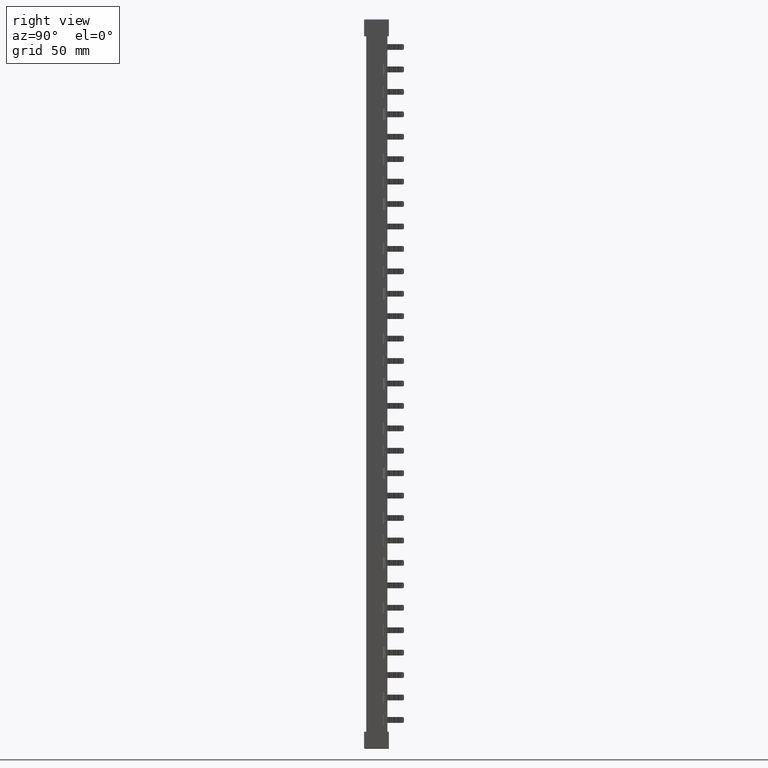
[diagram: clean part render]
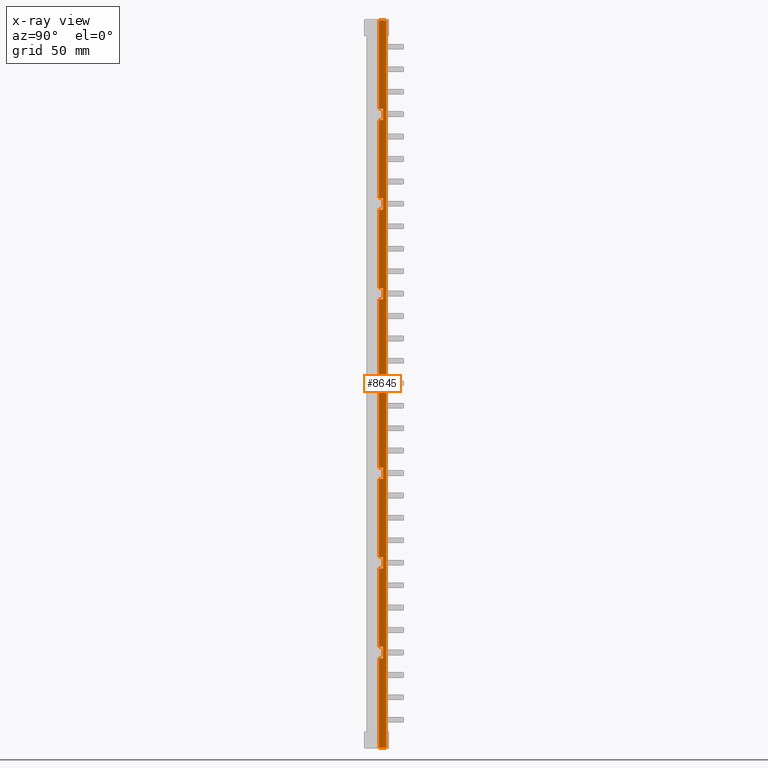
[diagram: x-ray — body ghosted, one internal face saturated and labeled with its STEP entity id]
A machine part, right view, then the same camera in x-ray: the body is ghosted and one INTERNAL B-rep face — a face not visible from any outside direction — is saturated and labeled: STEP entity #8645.
In plain terms, the highlighted planar face has unit normal (1, -0, 0).
Its self-contained STEP definition (entity closure, byte-faithful):
#1299 = PLANE ( 'NONE',  #4709 ) ;
#1300 = DIRECTION ( 'NONE',  ( 1.000000000000000000, -0.0000000000000000000, 0.0000000000000000000 ) ) ;
#1325 = FACE_OUTER_BOUND ( 'NONE', #6038, .T. ) ;
#1337 = DIRECTION ( 'NONE',  ( 0.0000000000000000000, 0.0000000000000000000, -1.000000000000000000 ) ) ;
#1340 = CARTESIAN_POINT ( 'NONE',  ( 1.000000000000000900, -14.22575591090892800, 304.0000000000000000 ) ) ;
#3133 = VERTEX_POINT ( 'NONE', #17382 ) ;
#3139 = VERTEX_POINT ( 'NONE', #17392 ) ;
#3141 = VERTEX_POINT ( 'NONE', #17350 ) ;
#3143 = VERTEX_POINT ( 'NONE', #17357 ) ;
#3153 = VERTEX_POINT ( 'NONE', #17341 ) ;
#3161 = VERTEX_POINT ( 'NONE', #17372 ) ;
#3173 = VERTEX_POINT ( 'NONE', #17375 ) ;
#3192 = VERTEX_POINT ( 'NONE', #17374 ) ;
#3206 = VERTEX_POINT ( 'NONE', #17362 ) ;
#3207 = VERTEX_POINT ( 'NONE', #17348 ) ;
#3208 = VERTEX_POINT ( 'NONE', #17360 ) ;
#3215 = VERTEX_POINT ( 'NONE', #17387 ) ;
#3216 = VERTEX_POINT ( 'NONE', #17365 ) ;
#3218 = VERTEX_POINT ( 'NONE', #17389 ) ;
#3219 = VERTEX_POINT ( 'NONE', #17349 ) ;
#3222 = VERTEX_POINT ( 'NONE', #17383 ) ;
#3223 = VERTEX_POINT ( 'NONE', #17351 ) ;
#3236 = VERTEX_POINT ( 'NONE', #17355 ) ;
#3260 = VERTEX_POINT ( 'NONE', #17379 ) ;
#3261 = VERTEX_POINT ( 'NONE', #17380 ) ;
#3277 = VERTEX_POINT ( 'NONE', #17396 ) ;
#3284 = VERTEX_POINT ( 'NONE', #17441 ) ;
#3287 = VERTEX_POINT ( 'NONE', #17406 ) ;
#3355 = ORIENTED_EDGE ( 'NONE', *, *, #9832, .T. ) ;
#3356 = ORIENTED_EDGE ( 'NONE', *, *, #9846, .T. ) ;
#3364 = ORIENTED_EDGE ( 'NONE', *, *, #9873, .T. ) ;
#3393 = ORIENTED_EDGE ( 'NONE', *, *, #9840, .T. ) ;
#3402 = ORIENTED_EDGE ( 'NONE', *, *, #9881, .F. ) ;
#3403 = ORIENTED_EDGE ( 'NONE', *, *, #9867, .T. ) ;
#3404 = ORIENTED_EDGE ( 'NONE', *, *, #9883, .T. ) ;
#3416 = ORIENTED_EDGE ( 'NONE', *, *, #9856, .T. ) ;
#3418 = ORIENTED_EDGE ( 'NONE', *, *, #9852, .T. ) ;
#3421 = ORIENTED_EDGE ( 'NONE', *, *, #9869, .T. ) ;
#3422 = ORIENTED_EDGE ( 'NONE', *, *, #9854, .T. ) ;
#3432 = ORIENTED_EDGE ( 'NONE', *, *, #9874, .T. ) ;
#3436 = ORIENTED_EDGE ( 'NONE', *, *, #9882, .T. ) ;
#3437 = ORIENTED_EDGE ( 'NONE', *, *, #9842, .T. ) ;
#3438 = ORIENTED_EDGE ( 'NONE', *, *, #9859, .T. ) ;
#3445 = ORIENTED_EDGE ( 'NONE', *, *, #9848, .T. ) ;
#3450 = ORIENTED_EDGE ( 'NONE', *, *, #9828, .T. ) ;
#3451 = ORIENTED_EDGE ( 'NONE', *, *, #9847, .F. ) ;
#3452 = ORIENTED_EDGE ( 'NONE', *, *, #9858, .T. ) ;
#3453 = ORIENTED_EDGE ( 'NONE', *, *, #9871, .T. ) ;
#3454 = ORIENTED_EDGE ( 'NONE', *, *, #9853, .T. ) ;
#3455 = ORIENTED_EDGE ( 'NONE', *, *, #9831, .T. ) ;
#3456 = ORIENTED_EDGE ( 'NONE', *, *, #9918, .T. ) ;
#3460 = ORIENTED_EDGE ( 'NONE', *, *, #9879, .T. ) ;
#3461 = ORIENTED_EDGE ( 'NONE', *, *, #9836, .T. ) ;
#3466 = ORIENTED_EDGE ( 'NONE', *, *, #9790, .T. ) ;
#3468 = ORIENTED_EDGE ( 'NONE', *, *, #9857, .T. ) ;
#3471 = ORIENTED_EDGE ( 'NONE', *, *, #9884, .T. ) ;
#3474 = ORIENTED_EDGE ( 'NONE', *, *, #9877, .T. ) ;
#3478 = ORIENTED_EDGE ( 'NONE', *, *, #9843, .T. ) ;
#3479 = ORIENTED_EDGE ( 'NONE', *, *, #9833, .T. ) ;
#3480 = ORIENTED_EDGE ( 'NONE', *, *, #9841, .T. ) ;
#4709 = AXIS2_PLACEMENT_3D ( 'NONE', #1340, #1300, #1337 ) ;
#6038 = EDGE_LOOP ( 'NONE', ( #3404, #3460, #3480, #3393, #3474, #3364, #3403, #3453, #3454, #3452, #3432, #3421, #3456, #3479, #3436, #3416, #3468, #3461, #3478, #3418, #3356, #3445, #3437, #3450, #3422, #3355, #3455, #3438, #3466, #3402, #3471, #3451 ) ) ;
#8645 = ADVANCED_FACE ( 'NONE', ( #1325 ), #1299, .T. ) ;
#9790 = EDGE_CURVE ( 'NONE', #12800, #12786, #52146, .T. ) ;
#9828 = EDGE_CURVE ( 'NONE', #3218, #12813, #52341, .T. ) ;
#9831 = EDGE_CURVE ( 'NONE', #3223, #3284, #52354, .T. ) ;
#9832 = EDGE_CURVE ( 'NONE', #12781, #3223, #52319, .T. ) ;
#9833 = EDGE_CURVE ( 'NONE', #3153, #3139, #52356, .T. ) ;
#9836 = EDGE_CURVE ( 'NONE', #12986, #3216, #52385, .T. ) ;
#9840 = EDGE_CURVE ( 'NONE', #3206, #3260, #52412, .T. ) ;
#9841 = EDGE_CURVE ( 'NONE', #3133, #3206, #52413, .T. ) ;
#9842 = EDGE_CURVE ( 'NONE', #3222, #3218, #52425, .T. ) ;
#9843 = EDGE_CURVE ( 'NONE', #3216, #3141, #52421, .T. ) ;
#9846 = EDGE_CURVE ( 'NONE', #12784, #12864, #52390, .T. ) ;
#9847 = EDGE_CURVE ( 'NONE', #12746, #3173, #52419, .T. ) ;
#9848 = EDGE_CURVE ( 'NONE', #12864, #3222, #52416, .T. ) ;
#9852 = EDGE_CURVE ( 'NONE', #3141, #12784, #52396, .T. ) ;
#9853 = EDGE_CURVE ( 'NONE', #3261, #3277, #52427, .T. ) ;
#9854 = EDGE_CURVE ( 'NONE', #12813, #12781, #52443, .T. ) ;
#9856 = EDGE_CURVE ( 'NONE', #3219, #12262, #52429, .T. ) ;
#9857 = EDGE_CURVE ( 'NONE', #12262, #12986, #52456, .T. ) ;
#9858 = EDGE_CURVE ( 'NONE', #3277, #3207, #52467, .T. ) ;
#9859 = EDGE_CURVE ( 'NONE', #3284, #12800, #52481, .T. ) ;
#9867 = EDGE_CURVE ( 'NONE', #3215, #3161, #52442, .T. ) ;
#9869 = EDGE_CURVE ( 'NONE', #3192, #3143, #52479, .T. ) ;
#9871 = EDGE_CURVE ( 'NONE', #3161, #3261, #52466, .T. ) ;
#9873 = EDGE_CURVE ( 'NONE', #3287, #3215, #52488, .T. ) ;
#9874 = EDGE_CURVE ( 'NONE', #3207, #3192, #50385, .T. ) ;
#9877 = EDGE_CURVE ( 'NONE', #3260, #3287, #50458, .T. ) ;
#9879 = EDGE_CURVE ( 'NONE', #3236, #3133, #52468, .T. ) ;
#9881 = EDGE_CURVE ( 'NONE', #3208, #12786, #50410, .T. ) ;
#9882 = EDGE_CURVE ( 'NONE', #3139, #3219, #50476, .T. ) ;
#9883 = EDGE_CURVE ( 'NONE', #12746, #3236, #50441, .T. ) ;
#9884 = EDGE_CURVE ( 'NONE', #3208, #3173, #50437, .T. ) ;
#9918 = EDGE_CURVE ( 'NONE', #3143, #3153, #56775, .T. ) ;
#12262 = VERTEX_POINT ( 'NONE', #42134 ) ;
#12746 = VERTEX_POINT ( 'NONE', #39005 ) ;
#12781 = VERTEX_POINT ( 'NONE', #39049 ) ;
#12784 = VERTEX_POINT ( 'NONE', #39091 ) ;
#12786 = VERTEX_POINT ( 'NONE', #39092 ) ;
#12800 = VERTEX_POINT ( 'NONE', #39074 ) ;
#12813 = VERTEX_POINT ( 'NONE', #39076 ) ;
#12864 = VERTEX_POINT ( 'NONE', #39138 ) ;
#12986 = VERTEX_POINT ( 'NONE', #39278 ) ;
#17341 = CARTESIAN_POINT ( 'NONE',  ( 1.000000000000000900, 10.00000000000003600, 24.90499999999656900 ) ) ;
#17348 = CARTESIAN_POINT ( 'NONE',  ( 1.000000000000000900, 13.19999999999797400, 95.00499999999655600 ) ) ;
#17349 = CARTESIAN_POINT ( 'NONE',  ( 1.000000000000000900, 13.19999999999797100, 15.90499999999654600 ) ) ;
#17350 = CARTESIAN_POINT ( 'NONE',  ( 1.000000000000000900, 13.19999999999797100, -54.19500000000347500 ) ) ;
#17351 = CARTESIAN_POINT ( 'NONE',  ( 1.000000000000000900, 13.19999999999797100, -185.3950000000034800 ) ) ;
#17355 = CARTESIAN_POINT ( 'NONE',  ( 1.000000000000000900, 10.00000000000000700, 235.2049999999965200 ) ) ;
#17357 = CARTESIAN_POINT ( 'NONE',  ( 1.000000000000000900, 10.00000000000003400, 86.00499999999654200 ) ) ;
#17360 = CARTESIAN_POINT ( 'NONE',  ( 1.000000000000000900, 15.50000000000001400, -264.0000000000000600 ) ) ;
#17362 = CARTESIAN_POINT ( 'NONE',  ( 1.000000000000000900, 13.19999999999797400, 226.2049999999965200 ) ) ;
#17365 = CARTESIAN_POINT ( 'NONE',  ( 1.000000000000000900, 13.19999999999797100, -45.19500000000345400 ) ) ;
#17372 = CARTESIAN_POINT ( 'NONE',  ( 1.000000000000000900, 13.19999999999797400, 156.1049999999965200 ) ) ;
#17374 = CARTESIAN_POINT ( 'NONE',  ( 1.000000000000000900, 13.19999999999797400, 86.00499999999652800 ) ) ;
#17375 = CARTESIAN_POINT ( 'NONE',  ( 1.000000000000000900, 15.50000000000001200, 303.9999999999996600 ) ) ;
#17379 = CARTESIAN_POINT ( 'NONE',  ( 1.000000000000000900, 10.00000000000001200, 226.2049999999965500 ) ) ;
#17380 = CARTESIAN_POINT ( 'NONE',  ( 1.000000000000000900, 10.00000000000002100, 156.1049999999964900 ) ) ;
#17382 = CARTESIAN_POINT ( 'NONE',  ( 1.000000000000000900, 13.19999999999797400, 235.2049999999965200 ) ) ;
#17383 = CARTESIAN_POINT ( 'NONE',  ( 1.000000000000000900, 13.19999999999797100, -115.2950000000034500 ) ) ;
#17387 = CARTESIAN_POINT ( 'NONE',  ( 1.000000000000000900, 13.19999999999797400, 165.1049999999965200 ) ) ;
#17389 = CARTESIAN_POINT ( 'NONE',  ( 1.000000000000000900, 13.19999999999797100, -124.2950000000034300 ) ) ;
#17392 = CARTESIAN_POINT ( 'NONE',  ( 1.000000000000000900, 13.19999999999797100, 24.90499999999654100 ) ) ;
#17396 = CARTESIAN_POINT ( 'NONE',  ( 1.000000000000000900, 10.00000000000002500, 95.00499999999657100 ) ) ;
#17406 = CARTESIAN_POINT ( 'NONE',  ( 1.000000000000000900, 10.00000000000001600, 165.1049999999965200 ) ) ;
#17441 = CARTESIAN_POINT ( 'NONE',  ( 1.000000000000000900, 13.19999999999797100, -194.3950000000034800 ) ) ;
#32717 = VECTOR ( 'NONE', #52414, 1000.000000000000000 ) ;
#32737 = VECTOR ( 'NONE', #52167, 1000.000000000000000 ) ;
#32748 = VECTOR ( 'NONE', #52420, 1000.000000000000000 ) ;
#32756 = VECTOR ( 'NONE', #52394, 1000.000000000000000 ) ;
#32771 = VECTOR ( 'NONE', #52376, 1000.000000000000000 ) ;
#32774 = VECTOR ( 'NONE', #52431, 1000.000000000000000 ) ;
#32778 = VECTOR ( 'NONE', #52411, 1000.000000000000000 ) ;
#32795 = VECTOR ( 'NONE', #52375, 1000.000000000000000 ) ;
#32797 = VECTOR ( 'NONE', #52365, 1000.000000000000000 ) ;
#32804 = VECTOR ( 'NONE', #52361, 1000.000000000000000 ) ;
#32808 = VECTOR ( 'NONE', #52407, 1000.000000000000000 ) ;
#32815 = VECTOR ( 'NONE', #52393, 1000.000000000000000 ) ;
#32830 = VECTOR ( 'NONE', #52339, 1000.000000000000000 ) ;
#32836 = VECTOR ( 'NONE', #52461, 1000.000000000000000 ) ;
#32839 = VECTOR ( 'NONE', #52480, 1000.000000000000000 ) ;
#32845 = VECTOR ( 'NONE', #50460, 1000.000000000000000 ) ;
#32854 = VECTOR ( 'NONE', #52436, 1000.000000000000000 ) ;
#32858 = VECTOR ( 'NONE', #50373, 1000.000000000000000 ) ;
#32860 = VECTOR ( 'NONE', #52471, 1000.000000000000000 ) ;
#32863 = VECTOR ( 'NONE', #50377, 1000.000000000000000 ) ;
#32872 = VECTOR ( 'NONE', #52463, 1000.000000000000000 ) ;
#32887 = VECTOR ( 'NONE', #50380, 1000.000000000000000 ) ;
#32909 = VECTOR ( 'NONE', #50467, 1000.000000000000000 ) ;
#32911 = VECTOR ( 'NONE', #50368, 1000.000000000000000 ) ;
#32924 = VECTOR ( 'NONE', #52453, 1000.000000000000000 ) ;
#32926 = VECTOR ( 'NONE', #52491, 1000.000000000000000 ) ;
#32928 = VECTOR ( 'NONE', #52435, 1000.000000000000000 ) ;
#32936 = VECTOR ( 'NONE', #50387, 1000.000000000000000 ) ;
#32947 = VECTOR ( 'NONE', #52485, 1000.000000000000000 ) ;
#32951 = VECTOR ( 'NONE', #52494, 1000.000000000000000 ) ;
#32953 = VECTOR ( 'NONE', #52403, 1000.000000000000000 ) ;
#32985 = VECTOR ( 'NONE', #56766, 1000.000000000000000 ) ;
#39005 = CARTESIAN_POINT ( 'NONE',  ( 1.000000000000000900, 10.00000000000000200, 303.9999999999996600 ) ) ;
#39049 = CARTESIAN_POINT ( 'NONE',  ( 1.000000000000000900, 10.00000000000006000, -185.3950000000034500 ) ) ;
#39074 = CARTESIAN_POINT ( 'NONE',  ( 1.000000000000000900, 10.00000000000005300, -194.3950000000035100 ) ) ;
#39076 = CARTESIAN_POINT ( 'NONE',  ( 1.000000000000000900, 10.00000000000005700, -124.2950000000034400 ) ) ;
#39091 = CARTESIAN_POINT ( 'NONE',  ( 1.000000000000000900, 10.00000000000004800, -54.19500000000348200 ) ) ;
#39092 = CARTESIAN_POINT ( 'NONE',  ( 1.000000000000000900, 10.00000000000005700, -263.9999999999998900 ) ) ;
#39138 = CARTESIAN_POINT ( 'NONE',  ( 1.000000000000000900, 10.00000000000005200, -115.2950000000034300 ) ) ;
#39278 = CARTESIAN_POINT ( 'NONE',  ( 1.000000000000000900, 10.00000000000004300, -45.19500000000342500 ) ) ;
#42134 = CARTESIAN_POINT ( 'NONE',  ( 1.000000000000000900, 10.00000000000004100, 15.90499999999655000 ) ) ;
#50368 = DIRECTION ( 'NONE',  ( 0.0000000000000000000, 0.0000000000000000000, -1.000000000000000000 ) ) ;
#50373 = DIRECTION ( 'NONE',  ( 0.0000000000000000000, 1.000000000000000000, 0.0000000000000000000 ) ) ;
#50377 = DIRECTION ( 'NONE',  ( -0.0000000000000000000, -1.000000000000000000, 0.0000000000000000000 ) ) ;
#50380 = DIRECTION ( 'NONE',  ( 0.0000000000000000000, -0.0000000000000000000, 1.000000000000000000 ) ) ;
#50385 = LINE ( 'NONE', #50430, #32936 ) ;
#50387 = DIRECTION ( 'NONE',  ( 0.0000000000000000000, 0.0000000000000000000, -1.000000000000000000 ) ) ;
#50406 = CARTESIAN_POINT ( 'NONE',  ( 1.000000000000000900, 10.00000000000001200, 306.0000000000000000 ) ) ;
#50410 = LINE ( 'NONE', #50435, #32863 ) ;
#50417 = CARTESIAN_POINT ( 'NONE',  ( 1.000000000000000900, 15.50000000000001400, 304.0000000000000000 ) ) ;
#50430 = CARTESIAN_POINT ( 'NONE',  ( 1.000000000000000900, 13.19999999999797400, 306.0000000000000000 ) ) ;
#50433 = CARTESIAN_POINT ( 'NONE',  ( 1.000000000000000900, -14.22575591090892800, 235.2049999999965200 ) ) ;
#50435 = CARTESIAN_POINT ( 'NONE',  ( 1.000000000000000900, -17.62393693064634100, -263.9999999999996000 ) ) ;
#50437 = LINE ( 'NONE', #50417, #32887 ) ;
#50441 = LINE ( 'NONE', #50472, #32911 ) ;
#50450 = CARTESIAN_POINT ( 'NONE',  ( 1.000000000000000900, 13.19999999999797100, 306.0000000000000000 ) ) ;
#50458 = LINE ( 'NONE', #50406, #32845 ) ;
#50460 = DIRECTION ( 'NONE',  ( 0.0000000000000000000, 0.0000000000000000000, -1.000000000000000000 ) ) ;
#50467 = DIRECTION ( 'NONE',  ( 0.0000000000000000000, 0.0000000000000000000, -1.000000000000000000 ) ) ;
#50472 = CARTESIAN_POINT ( 'NONE',  ( 1.000000000000000900, 10.00000000000000200, 304.0000000000000000 ) ) ;
#50476 = LINE ( 'NONE', #50450, #32909 ) ;
#52146 = LINE ( 'NONE', #52189, #32737 ) ;
#52167 = DIRECTION ( 'NONE',  ( 0.0000000000000000000, 0.0000000000000000000, -1.000000000000000000 ) ) ;
#52189 = CARTESIAN_POINT ( 'NONE',  ( 1.000000000000000900, 10.00000000000004100, 306.0000000000000000 ) ) ;
#52319 = LINE ( 'NONE', #52358, #32804 ) ;
#52321 = CARTESIAN_POINT ( 'NONE',  ( 1.000000000000000900, 13.19999999999797100, 306.0000000000000000 ) ) ;
#52339 = DIRECTION ( 'NONE',  ( 0.0000000000000000000, 1.000000000000000000, 0.0000000000000000000 ) ) ;
#52341 = LINE ( 'NONE', #52371, #32795 ) ;
#52354 = LINE ( 'NONE', #52321, #32771 ) ;
#52356 = LINE ( 'NONE', #52370, #32797 ) ;
#52358 = CARTESIAN_POINT ( 'NONE',  ( 1.000000000000000900, -14.22575591090892800, -185.3950000000034800 ) ) ;
#52361 = DIRECTION ( 'NONE',  ( 0.0000000000000000000, 1.000000000000000000, 0.0000000000000000000 ) ) ;
#52365 = DIRECTION ( 'NONE',  ( 0.0000000000000000000, 1.000000000000000000, 0.0000000000000000000 ) ) ;
#52366 = CARTESIAN_POINT ( 'NONE',  ( 1.000000000000000900, -14.22575591090892800, -45.19500000000342500 ) ) ;
#52370 = CARTESIAN_POINT ( 'NONE',  ( 1.000000000000000900, -14.22575591090892800, 24.90499999999656900 ) ) ;
#52371 = CARTESIAN_POINT ( 'NONE',  ( 1.000000000000000900, -14.22575591090892800, -124.2950000000034300 ) ) ;
#52375 = DIRECTION ( 'NONE',  ( -0.0000000000000000000, -1.000000000000000000, -0.0000000000000000000 ) ) ;
#52376 = DIRECTION ( 'NONE',  ( 0.0000000000000000000, 0.0000000000000000000, -1.000000000000000000 ) ) ;
#52385 = LINE ( 'NONE', #52366, #32830 ) ;
#52390 = LINE ( 'NONE', #52426, #32774 ) ;
#52393 = DIRECTION ( 'NONE',  ( 0.0000000000000000000, 1.000000000000000000, 0.0000000000000000000 ) ) ;
#52394 = DIRECTION ( 'NONE',  ( 0.0000000000000000000, 1.000000000000000000, 0.0000000000000000000 ) ) ;
#52396 = LINE ( 'NONE', #52398, #32953 ) ;
#52397 = CARTESIAN_POINT ( 'NONE',  ( 1.000000000000000900, -14.22575591090892800, 226.2049999999965200 ) ) ;
#52398 = CARTESIAN_POINT ( 'NONE',  ( 1.000000000000000900, -14.22575591090892800, -54.19500000000348900 ) ) ;
#52403 = DIRECTION ( 'NONE',  ( -0.0000000000000000000, -1.000000000000000000, -0.0000000000000000000 ) ) ;
#52407 = DIRECTION ( 'NONE',  ( -0.0000000000000000000, -1.000000000000000000, -0.0000000000000000000 ) ) ;
#52408 = CARTESIAN_POINT ( 'NONE',  ( 1.000000000000000900, 13.19999999999797400, 306.0000000000000000 ) ) ;
#52409 = CARTESIAN_POINT ( 'NONE',  ( 1.000000000000000900, -14.22575591090892800, -115.2950000000034300 ) ) ;
#52411 = DIRECTION ( 'NONE',  ( 0.0000000000000000000, 0.0000000000000000000, -1.000000000000000000 ) ) ;
#52412 = LINE ( 'NONE', #52397, #32808 ) ;
#52413 = LINE ( 'NONE', #52408, #32748 ) ;
#52414 = DIRECTION ( 'NONE',  ( 0.0000000000000000000, 0.0000000000000000000, -1.000000000000000000 ) ) ;
#52416 = LINE ( 'NONE', #52409, #32756 ) ;
#52419 = LINE ( 'NONE', #52430, #32815 ) ;
#52420 = DIRECTION ( 'NONE',  ( 0.0000000000000000000, 0.0000000000000000000, -1.000000000000000000 ) ) ;
#52421 = LINE ( 'NONE', #52424, #32778 ) ;
#52424 = CARTESIAN_POINT ( 'NONE',  ( 1.000000000000000900, 13.19999999999797100, 306.0000000000000000 ) ) ;
#52425 = LINE ( 'NONE', #52434, #32717 ) ;
#52426 = CARTESIAN_POINT ( 'NONE',  ( 1.000000000000000900, 10.00000000000004600, 306.0000000000000000 ) ) ;
#52427 = LINE ( 'NONE', #52451, #32872 ) ;
#52429 = LINE ( 'NONE', #52475, #32839 ) ;
#52430 = CARTESIAN_POINT ( 'NONE',  ( 1.000000000000000900, -17.62393693064634100, 303.9999999999996600 ) ) ;
#52431 = DIRECTION ( 'NONE',  ( 0.0000000000000000000, 0.0000000000000000000, -1.000000000000000000 ) ) ;
#52434 = CARTESIAN_POINT ( 'NONE',  ( 1.000000000000000900, 13.19999999999797100, 306.0000000000000000 ) ) ;
#52435 = DIRECTION ( 'NONE',  ( -0.0000000000000000000, -1.000000000000000000, -0.0000000000000000000 ) ) ;
#52436 = DIRECTION ( 'NONE',  ( 0.0000000000000000000, 1.000000000000000000, 0.0000000000000000000 ) ) ;
#52441 = CARTESIAN_POINT ( 'NONE',  ( 1.000000000000000900, -14.22575591090892800, 86.00499999999652800 ) ) ;
#52442 = LINE ( 'NONE', #52447, #32836 ) ;
#52443 = LINE ( 'NONE', #52469, #32860 ) ;
#52447 = CARTESIAN_POINT ( 'NONE',  ( 1.000000000000000900, 13.19999999999797400, 306.0000000000000000 ) ) ;
#52451 = CARTESIAN_POINT ( 'NONE',  ( 1.000000000000000900, 10.00000000000002000, 306.0000000000000000 ) ) ;
#52452 = CARTESIAN_POINT ( 'NONE',  ( 1.000000000000000900, -14.22575591090892800, 95.00499999999657100 ) ) ;
#52453 = DIRECTION ( 'NONE',  ( 0.0000000000000000000, 0.0000000000000000000, -1.000000000000000000 ) ) ;
#52456 = LINE ( 'NONE', #52457, #32924 ) ;
#52457 = CARTESIAN_POINT ( 'NONE',  ( 1.000000000000000900, 10.00000000000004100, 306.0000000000000000 ) ) ;
#52461 = DIRECTION ( 'NONE',  ( 0.0000000000000000000, 0.0000000000000000000, -1.000000000000000000 ) ) ;
#52463 = DIRECTION ( 'NONE',  ( 0.0000000000000000000, 0.0000000000000000000, -1.000000000000000000 ) ) ;
#52466 = LINE ( 'NONE', #52495, #32947 ) ;
#52467 = LINE ( 'NONE', #52452, #32854 ) ;
#52468 = LINE ( 'NONE', #50433, #32858 ) ;
#52469 = CARTESIAN_POINT ( 'NONE',  ( 1.000000000000000900, 10.00000000000005700, 306.0000000000000000 ) ) ;
#52471 = DIRECTION ( 'NONE',  ( 0.0000000000000000000, 0.0000000000000000000, -1.000000000000000000 ) ) ;
#52475 = CARTESIAN_POINT ( 'NONE',  ( 1.000000000000000900, -14.22575591090892800, 15.90499999999656000 ) ) ;
#52477 = CARTESIAN_POINT ( 'NONE',  ( 1.000000000000000900, -14.22575591090892800, -194.3950000000034800 ) ) ;
#52479 = LINE ( 'NONE', #52441, #32926 ) ;
#52480 = DIRECTION ( 'NONE',  ( -0.0000000000000000000, -1.000000000000000000, -0.0000000000000000000 ) ) ;
#52481 = LINE ( 'NONE', #52477, #32928 ) ;
#52485 = DIRECTION ( 'NONE',  ( -0.0000000000000000000, -1.000000000000000000, -0.0000000000000000000 ) ) ;
#52488 = LINE ( 'NONE', #52489, #32951 ) ;
#52489 = CARTESIAN_POINT ( 'NONE',  ( 1.000000000000000900, -14.22575591090892800, 165.1049999999965200 ) ) ;
#52491 = DIRECTION ( 'NONE',  ( -0.0000000000000000000, -1.000000000000000000, -0.0000000000000000000 ) ) ;
#52494 = DIRECTION ( 'NONE',  ( 0.0000000000000000000, 1.000000000000000000, 0.0000000000000000000 ) ) ;
#52495 = CARTESIAN_POINT ( 'NONE',  ( 1.000000000000000900, -14.22575591090892800, 156.1049999999965200 ) ) ;
#56763 = CARTESIAN_POINT ( 'NONE',  ( 1.000000000000000900, 10.00000000000003400, 306.0000000000000000 ) ) ;
#56766 = DIRECTION ( 'NONE',  ( 0.0000000000000000000, 0.0000000000000000000, -1.000000000000000000 ) ) ;
#56775 = LINE ( 'NONE', #56763, #32985 ) ;